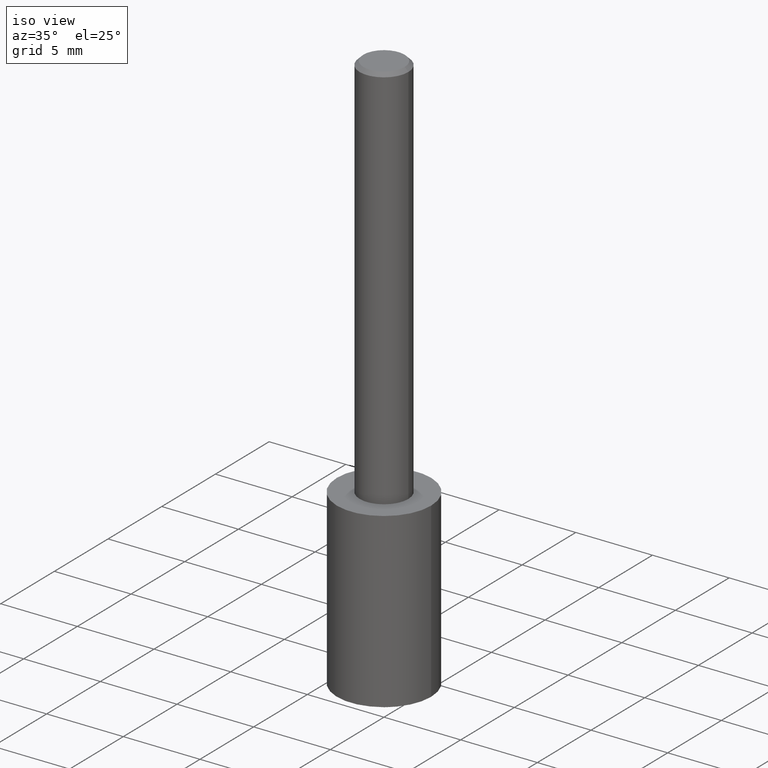
[diagram: clean part render]
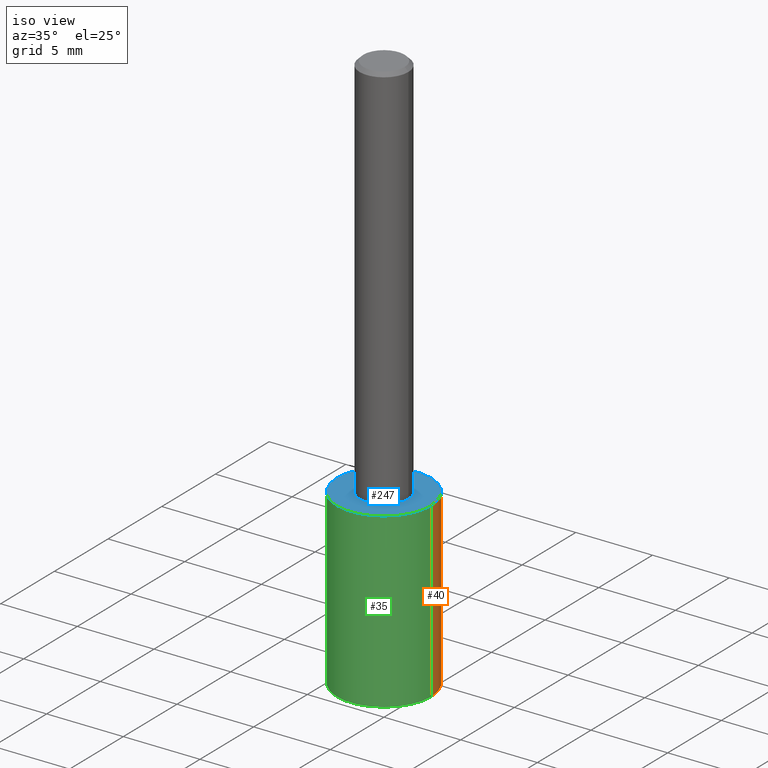
[diagram: same view with three faces highlighted in distinct colors, each labeled with its STEP entity id]
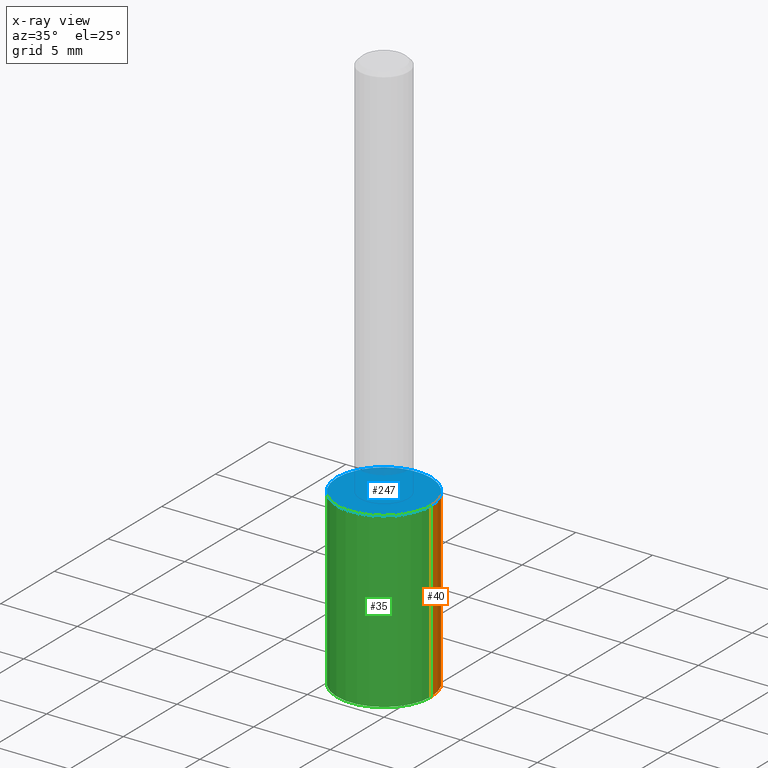
[diagram: x-ray of the same camera — body ghosted, the three highlighted faces saturated]
A machine part, iso view with three faces highlighted in distinct colors.
The next image is the same camera in x-ray (body ghosted, the three faces saturated) — at least one of them is partly hidden behind the body in this view.
Their STEP definitions:

[orange] entity #40 — the highlighted cylindrical surface (partial cylindrical patch) has radius 3.0747 mm, axis along (-0, 0, 1).
#1 = AXIS2_PLACEMENT_3D ( 'NONE', #12, #240, #264 ) ;
#3 = ORIENTED_EDGE ( 'NONE', *, *, #183, .T. ) ;
#8 = VERTEX_POINT ( 'NONE', #217 ) ;
#12 = CARTESIAN_POINT ( 'NONE',  ( 3.530164951551601858E-29, -5.040139960160841539E-15, -1.443553457980337740 ) ) ;
#22 = EDGE_CURVE ( 'NONE', #234, #8, #174, .T. ) ;
#31 = DIRECTION ( 'NONE',  ( -2.445468806185136877E-29, 3.491481338843145188E-15, 1.000000000000000000 ) ) ;
#32 = CARTESIAN_POINT ( 'NONE',  ( -0.1210499999999999909, -3.405698667864392547E-15, -1.000000000000000222 ) ) ;
#38 = DIRECTION ( 'NONE',  ( -2.445468806185136597E-29, 3.491481338843145583E-15, 1.000000000000000000 ) ) ;
#40 = ADVANCED_FACE ( 'NONE', ( #172 ), #274, .T. ) ;
#53 = CARTESIAN_POINT ( 'NONE',  ( -0.1210499999999999909, -2.631369357205545161E-15, -1.000000000000000222 ) ) ;
#83 = EDGE_LOOP ( 'NONE', ( #3, #195, #130, #239 ) ) ;
#103 = VERTEX_POINT ( 'NONE', #142 ) ;
#104 = CARTESIAN_POINT ( 'NONE',  ( 2.445468806185136877E-29, -3.491481338843145977E-15, -1.000000000000000222 ) ) ;
#116 = DIRECTION ( 'NONE',  ( -2.445468806185136877E-29, 3.491481338843145188E-15, 1.000000000000000000 ) ) ;
#130 = ORIENTED_EDGE ( 'NONE', *, *, #194, .F. ) ;
#142 = CARTESIAN_POINT ( 'NONE',  ( -0.1210500000000000187, -4.180027978523240328E-15, -1.443553457980337740 ) ) ;
#143 = CARTESIAN_POINT ( 'NONE',  ( 0.1210499999999999909, -4.336768970977069559E-15, -1.000000000000000222 ) ) ;
#164 = VECTOR ( 'NONE', #116, 39.37007874015748143 ) ;
#172 = FACE_OUTER_BOUND ( 'NONE', #83, .T. ) ;
#174 = LINE ( 'NONE', #143, #164 ) ;
#182 = VERTEX_POINT ( 'NONE', #32 ) ;
#183 = EDGE_CURVE ( 'NONE', #234, #103, #256, .T. ) ;
#194 = EDGE_CURVE ( 'NONE', #8, #182, #271, .T. ) ;
#195 = ORIENTED_EDGE ( 'NONE', *, *, #205, .T. ) ;
#198 = VECTOR ( 'NONE', #31, 39.37007874015748143 ) ;
#200 = CARTESIAN_POINT ( 'NONE',  ( 2.445468806185137438E-29, -3.491481338843146371E-15, -1.000000000000000222 ) ) ;
#205 = EDGE_CURVE ( 'NONE', #103, #182, #291, .T. ) ;
#211 = DIRECTION ( 'NONE',  ( -2.445468806185136597E-29, 3.491481338843145583E-15, 1.000000000000000000 ) ) ;
#217 = CARTESIAN_POINT ( 'NONE',  ( 0.1210499999999999909, -4.336768970977068771E-15, -1.000000000000000222 ) ) ;
#223 = DIRECTION ( 'NONE',  ( 1.000000000000000000, -6.982962677686268288E-15, 0.000000000000000000 ) ) ;
#234 = VERTEX_POINT ( 'NONE', #293 ) ;
#239 = ORIENTED_EDGE ( 'NONE', *, *, #22, .F. ) ;
#240 = DIRECTION ( 'NONE',  ( -2.445468806185136597E-29, 3.491481338843145583E-15, 1.000000000000000000 ) ) ;
#243 = DIRECTION ( 'NONE',  ( 1.000000000000000000, -6.982962677686268288E-15, 0.000000000000000000 ) ) ;
#256 = CIRCLE ( 'NONE', #1, 0.1210499999999999909 ) ;
#264 = DIRECTION ( 'NONE',  ( 1.000000000000000000, -6.982962677686264344E-15, 0.000000000000000000 ) ) ;
#271 = CIRCLE ( 'NONE', #327, 0.1210499999999999909 ) ;
#274 = CYLINDRICAL_SURFACE ( 'NONE', #310, 0.1210499999999999909 ) ;
#291 = LINE ( 'NONE', #53, #198 ) ;
#293 = CARTESIAN_POINT ( 'NONE',  ( 0.1210500000000000187, -5.885427592294764333E-15, -1.443553457980337740 ) ) ;
#310 = AXIS2_PLACEMENT_3D ( 'NONE', #200, #38, #223 ) ;
#327 = AXIS2_PLACEMENT_3D ( 'NONE', #104, #211, #243 ) ;

[blue] entity #247 — the highlighted planar face has unit normal (0, -0, -1).
#8 = VERTEX_POINT ( 'NONE', #217 ) ;
#25 = AXIS2_PLACEMENT_3D ( 'NONE', #160, #268, #188 ) ;
#32 = CARTESIAN_POINT ( 'NONE',  ( -0.1210499999999999909, -3.405698667864392547E-15, -1.000000000000000222 ) ) ;
#33 = CARTESIAN_POINT ( 'NONE',  ( 3.233423890070707962E-29, -2.363084811100782083E-15, -1.000000000000000222 ) ) ;
#55 = FACE_OUTER_BOUND ( 'NONE', #285, .T. ) ;
#78 = CIRCLE ( 'NONE', #25, 0.1210499999999999909 ) ;
#104 = CARTESIAN_POINT ( 'NONE',  ( 2.445468806185136877E-29, -3.491481338843145977E-15, -1.000000000000000222 ) ) ;
#113 = PLANE ( 'NONE',  #233 ) ;
#139 = EDGE_CURVE ( 'NONE', #182, #8, #78, .T. ) ;
#160 = CARTESIAN_POINT ( 'NONE',  ( 2.445468806185136877E-29, -3.491481338843145977E-15, -1.000000000000000222 ) ) ;
#166 = DIRECTION ( 'NONE',  ( -1.000000000000000000, 6.982962677686265922E-15, -4.876176775795935793E-29 ) ) ;
#182 = VERTEX_POINT ( 'NONE', #32 ) ;
#188 = DIRECTION ( 'NONE',  ( 1.000000000000000000, -6.982962677686268288E-15, 0.000000000000000000 ) ) ;
#194 = EDGE_CURVE ( 'NONE', #8, #182, #271, .T. ) ;
#211 = DIRECTION ( 'NONE',  ( -2.445468806185136597E-29, 3.491481338843145583E-15, 1.000000000000000000 ) ) ;
#214 = ORIENTED_EDGE ( 'NONE', *, *, #139, .T. ) ;
#217 = CARTESIAN_POINT ( 'NONE',  ( 0.1210499999999999909, -4.336768970977068771E-15, -1.000000000000000222 ) ) ;
#218 = DIRECTION ( 'NONE',  ( 2.438088387897960049E-29, -3.491481338843145188E-15, -1.000000000000000000 ) ) ;
#233 = AXIS2_PLACEMENT_3D ( 'NONE', #33, #218, #166 ) ;
#243 = DIRECTION ( 'NONE',  ( 1.000000000000000000, -6.982962677686268288E-15, 0.000000000000000000 ) ) ;
#247 = ADVANCED_FACE ( 'NONE', ( #55 ), #113, .F. ) ;
#268 = DIRECTION ( 'NONE',  ( -2.445468806185136597E-29, 3.491481338843145583E-15, 1.000000000000000000 ) ) ;
#271 = CIRCLE ( 'NONE', #327, 0.1210499999999999909 ) ;
#272 = ORIENTED_EDGE ( 'NONE', *, *, #194, .T. ) ;
#285 = EDGE_LOOP ( 'NONE', ( #272, #214 ) ) ;
#327 = AXIS2_PLACEMENT_3D ( 'NONE', #104, #211, #243 ) ;

[green] entity #35 — the highlighted cylindrical surface (partial cylindrical patch) has radius 3.0747 mm, axis along (-0, 0, 1).
#8 = VERTEX_POINT ( 'NONE', #217 ) ;
#22 = EDGE_CURVE ( 'NONE', #234, #8, #174, .T. ) ;
#25 = AXIS2_PLACEMENT_3D ( 'NONE', #160, #268, #188 ) ;
#31 = DIRECTION ( 'NONE',  ( -2.445468806185136877E-29, 3.491481338843145188E-15, 1.000000000000000000 ) ) ;
#32 = CARTESIAN_POINT ( 'NONE',  ( -0.1210499999999999909, -3.405698667864392547E-15, -1.000000000000000222 ) ) ;
#35 = ADVANCED_FACE ( 'NONE', ( #331 ), #86, .T. ) ;
#53 = CARTESIAN_POINT ( 'NONE',  ( -0.1210499999999999909, -2.631369357205545161E-15, -1.000000000000000222 ) ) ;
#62 = DIRECTION ( 'NONE',  ( 1.000000000000000000, -6.982962677686268288E-15, 0.000000000000000000 ) ) ;
#78 = CIRCLE ( 'NONE', #25, 0.1210499999999999909 ) ;
#79 = DIRECTION ( 'NONE',  ( 1.000000000000000000, -6.982962677686264344E-15, 0.000000000000000000 ) ) ;
#86 = CYLINDRICAL_SURFACE ( 'NONE', #189, 0.1210499999999999909 ) ;
#99 = ORIENTED_EDGE ( 'NONE', *, *, #22, .T. ) ;
#103 = VERTEX_POINT ( 'NONE', #142 ) ;
#112 = AXIS2_PLACEMENT_3D ( 'NONE', #236, #326, #79 ) ;
#116 = DIRECTION ( 'NONE',  ( -2.445468806185136877E-29, 3.491481338843145188E-15, 1.000000000000000000 ) ) ;
#139 = EDGE_CURVE ( 'NONE', #182, #8, #78, .T. ) ;
#142 = CARTESIAN_POINT ( 'NONE',  ( -0.1210500000000000187, -4.180027978523240328E-15, -1.443553457980337740 ) ) ;
#143 = CARTESIAN_POINT ( 'NONE',  ( 0.1210499999999999909, -4.336768970977069559E-15, -1.000000000000000222 ) ) ;
#158 = CIRCLE ( 'NONE', #112, 0.1210499999999999909 ) ;
#159 = ORIENTED_EDGE ( 'NONE', *, *, #288, .T. ) ;
#160 = CARTESIAN_POINT ( 'NONE',  ( 2.445468806185136877E-29, -3.491481338843145977E-15, -1.000000000000000222 ) ) ;
#164 = VECTOR ( 'NONE', #116, 39.37007874015748143 ) ;
#174 = LINE ( 'NONE', #143, #164 ) ;
#182 = VERTEX_POINT ( 'NONE', #32 ) ;
#188 = DIRECTION ( 'NONE',  ( 1.000000000000000000, -6.982962677686268288E-15, 0.000000000000000000 ) ) ;
#189 = AXIS2_PLACEMENT_3D ( 'NONE', #197, #304, #62 ) ;
#197 = CARTESIAN_POINT ( 'NONE',  ( 2.445468806185137438E-29, -3.491481338843146371E-15, -1.000000000000000222 ) ) ;
#198 = VECTOR ( 'NONE', #31, 39.37007874015748143 ) ;
#205 = EDGE_CURVE ( 'NONE', #103, #182, #291, .T. ) ;
#217 = CARTESIAN_POINT ( 'NONE',  ( 0.1210499999999999909, -4.336768970977068771E-15, -1.000000000000000222 ) ) ;
#234 = VERTEX_POINT ( 'NONE', #293 ) ;
#236 = CARTESIAN_POINT ( 'NONE',  ( 3.530164951551601858E-29, -5.040139960160841539E-15, -1.443553457980337740 ) ) ;
#260 = ORIENTED_EDGE ( 'NONE', *, *, #205, .F. ) ;
#263 = ORIENTED_EDGE ( 'NONE', *, *, #139, .F. ) ;
#268 = DIRECTION ( 'NONE',  ( -2.445468806185136597E-29, 3.491481338843145583E-15, 1.000000000000000000 ) ) ;
#275 = EDGE_LOOP ( 'NONE', ( #260, #159, #99, #263 ) ) ;
#288 = EDGE_CURVE ( 'NONE', #103, #234, #158, .T. ) ;
#291 = LINE ( 'NONE', #53, #198 ) ;
#293 = CARTESIAN_POINT ( 'NONE',  ( 0.1210500000000000187, -5.885427592294764333E-15, -1.443553457980337740 ) ) ;
#304 = DIRECTION ( 'NONE',  ( -2.445468806185136597E-29, 3.491481338843145583E-15, 1.000000000000000000 ) ) ;
#326 = DIRECTION ( 'NONE',  ( -2.445468806185136597E-29, 3.491481338843145583E-15, 1.000000000000000000 ) ) ;
#331 = FACE_OUTER_BOUND ( 'NONE', #275, .T. ) ;